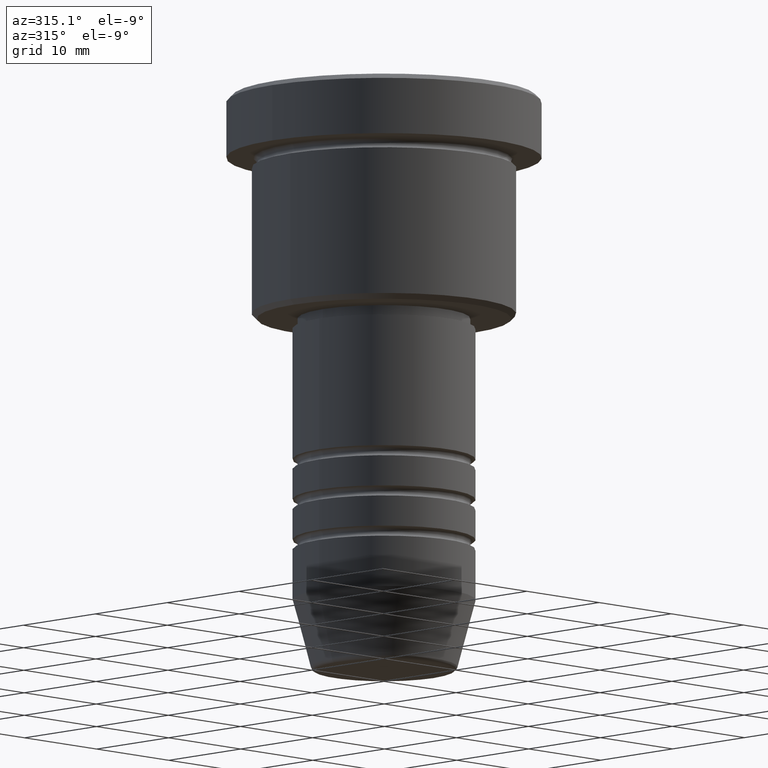
[diagram: clean part render]
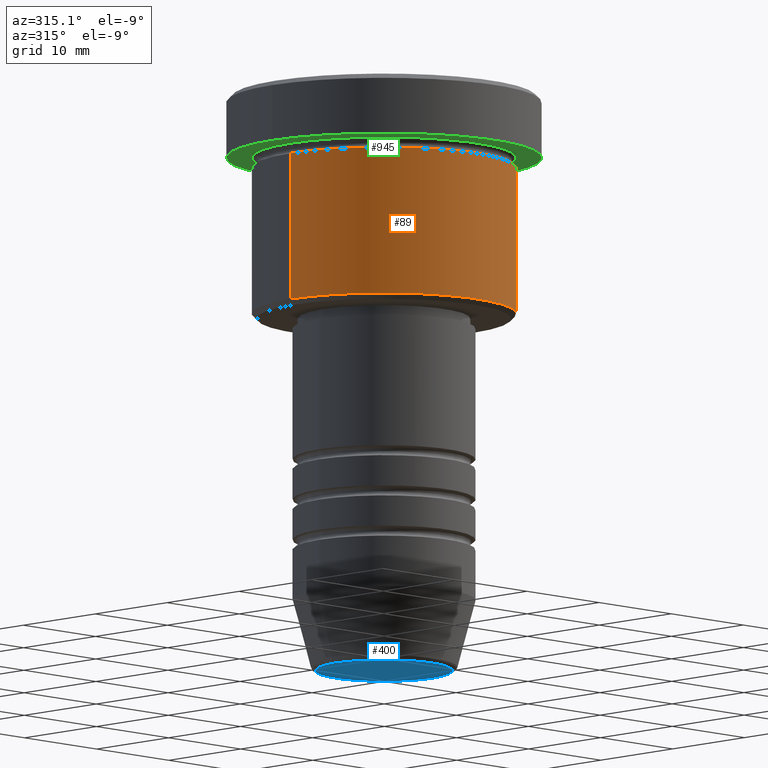
[diagram: same view with three faces highlighted in distinct colors, each labeled with its STEP entity id]
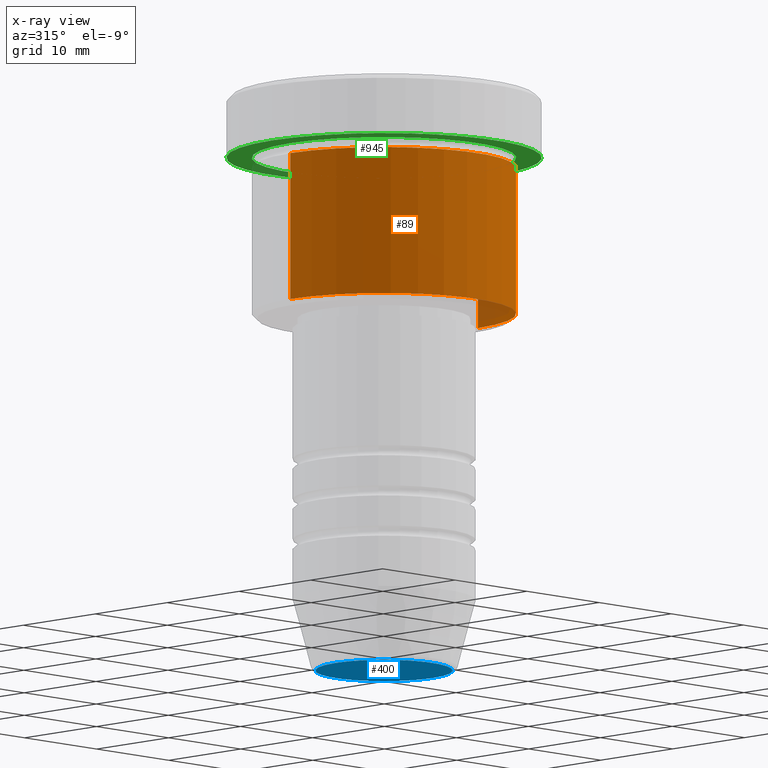
[diagram: x-ray of the same camera — body ghosted, the three highlighted faces saturated]
A machine part, auxiliary view with three faces highlighted in distinct colors.
The next image is the same camera in x-ray (body ghosted, the three faces saturated) — at least one of them is partly hidden behind the body in this view.
Their STEP definitions:

[orange] entity #89 — the highlighted cylindrical surface (partial cylindrical patch) has radius 13 mm, axis along (-0, -0, 1).
#6 = CARTESIAN_POINT ( 'NONE',  ( 13.00000000000000178, 0.000000000000000000, -6.999999999999995559 ) ) ;
#46 = AXIS2_PLACEMENT_3D ( 'NONE', #1096, #97, #452 ) ;
#89 = ADVANCED_FACE ( 'NONE', ( #1128 ), #860, .T. ) ;
#97 = DIRECTION ( 'NONE',  ( -0.000000000000000000, -0.000000000000000000, 1.000000000000000000 ) ) ;
#148 = DIRECTION ( 'NONE',  ( 1.000000000000000000, 0.000000000000000000, 0.000000000000000000 ) ) ;
#237 = DIRECTION ( 'NONE',  ( -0.000000000000000000, -0.000000000000000000, 1.000000000000000000 ) ) ;
#240 = CARTESIAN_POINT ( 'NONE',  ( -13.00000000000000178, 1.592040838891559293E-15, -21.49999999999999289 ) ) ;
#256 = CARTESIAN_POINT ( 'NONE',  ( 13.00000000000000178, 0.000000000000000000, 0.000000000000000000 ) ) ;
#286 = CARTESIAN_POINT ( 'NONE',  ( -13.00000000000000178, 1.592040838891559293E-15, 0.000000000000000000 ) ) ;
#309 = CARTESIAN_POINT ( 'NONE',  ( 0.000000000000000000, 0.000000000000000000, 0.000000000000000000 ) ) ;
#375 = ORIENTED_EDGE ( 'NONE', *, *, #381, .F. ) ;
#381 = EDGE_CURVE ( 'NONE', #600, #956, #664, .T. ) ;
#396 = VERTEX_POINT ( 'NONE', #240 ) ;
#412 = DIRECTION ( 'NONE',  ( -0.000000000000000000, -0.000000000000000000, 1.000000000000000000 ) ) ;
#426 = CARTESIAN_POINT ( 'NONE',  ( 0.000000000000000000, 0.000000000000000000, -6.999999999999995559 ) ) ;
#438 = AXIS2_PLACEMENT_3D ( 'NONE', #426, #412, #787 ) ;
#452 = DIRECTION ( 'NONE',  ( -1.000000000000000000, 0.000000000000000000, 0.000000000000000000 ) ) ;
#538 = VECTOR ( 'NONE', #968, 1000.000000000000000 ) ;
#589 = EDGE_CURVE ( 'NONE', #396, #808, #795, .T. ) ;
#600 = VERTEX_POINT ( 'NONE', #928 ) ;
#614 = ORIENTED_EDGE ( 'NONE', *, *, #1025, .F. ) ;
#654 = DIRECTION ( 'NONE',  ( -0.000000000000000000, -0.000000000000000000, 1.000000000000000000 ) ) ;
#664 = CIRCLE ( 'NONE', #438, 13.00000000000000178 ) ;
#745 = VECTOR ( 'NONE', #654, 1000.000000000000000 ) ;
#787 = DIRECTION ( 'NONE',  ( 1.000000000000000000, 0.000000000000000000, 0.000000000000000000 ) ) ;
#790 = EDGE_CURVE ( 'NONE', #808, #956, #1056, .T. ) ;
#795 = CIRCLE ( 'NONE', #46, 13.00000000000000178 ) ;
#801 = CARTESIAN_POINT ( 'NONE',  ( 13.00000000000000178, 0.000000000000000000, -21.49999999999999289 ) ) ;
#808 = VERTEX_POINT ( 'NONE', #801 ) ;
#811 = AXIS2_PLACEMENT_3D ( 'NONE', #309, #237, #148 ) ;
#851 = LINE ( 'NONE', #286, #745 ) ;
#860 = CYLINDRICAL_SURFACE ( 'NONE', #811, 13.00000000000000178 ) ;
#915 = EDGE_LOOP ( 'NONE', ( #614, #1028, #967, #375 ) ) ;
#928 = CARTESIAN_POINT ( 'NONE',  ( -13.00000000000000178, 1.592040838891559293E-15, -6.999999999999995559 ) ) ;
#956 = VERTEX_POINT ( 'NONE', #6 ) ;
#967 = ORIENTED_EDGE ( 'NONE', *, *, #790, .T. ) ;
#968 = DIRECTION ( 'NONE',  ( -0.000000000000000000, -0.000000000000000000, 1.000000000000000000 ) ) ;
#1025 = EDGE_CURVE ( 'NONE', #396, #600, #851, .T. ) ;
#1028 = ORIENTED_EDGE ( 'NONE', *, *, #589, .T. ) ;
#1056 = LINE ( 'NONE', #256, #538 ) ;
#1096 = CARTESIAN_POINT ( 'NONE',  ( 0.000000000000000000, 0.000000000000000000, -21.49999999999999289 ) ) ;
#1128 = FACE_OUTER_BOUND ( 'NONE', #915, .T. ) ;

[blue] entity #400 — the highlighted planar face has unit normal (0, -0, 1).
#70 = FACE_OUTER_BOUND ( 'NONE', #490, .T. ) ;
#74 = ORIENTED_EDGE ( 'NONE', *, *, #106, .T. ) ;
#81 = CIRCLE ( 'NONE', #273, 6.740692158992656502 ) ;
#106 = EDGE_CURVE ( 'NONE', #131, #550, #251, .T. ) ;
#118 = CARTESIAN_POINT ( 'NONE',  ( 0.000000000000000000, 0.000000000000000000, -57.00000000000000000 ) ) ;
#131 = VERTEX_POINT ( 'NONE', #669 ) ;
#169 = DIRECTION ( 'NONE',  ( 0.000000000000000000, -0.000000000000000000, 1.000000000000000000 ) ) ;
#196 = EDGE_CURVE ( 'NONE', #550, #131, #81, .T. ) ;
#251 = CIRCLE ( 'NONE', #870, 6.740692158992656502 ) ;
#273 = AXIS2_PLACEMENT_3D ( 'NONE', #118, #404, #467 ) ;
#360 = ORIENTED_EDGE ( 'NONE', *, *, #196, .T. ) ;
#400 = ADVANCED_FACE ( 'NONE', ( #70 ), #803, .F. ) ;
#404 = DIRECTION ( 'NONE',  ( 0.000000000000000000, 0.000000000000000000, -1.000000000000000000 ) ) ;
#459 = DIRECTION ( 'NONE',  ( 0.000000000000000000, 0.000000000000000000, -1.000000000000000000 ) ) ;
#467 = DIRECTION ( 'NONE',  ( 1.000000000000000000, 0.000000000000000000, 0.000000000000000000 ) ) ;
#473 = CARTESIAN_POINT ( 'NONE',  ( 0.000000000000000000, 0.000000000000000000, -57.00000000000000000 ) ) ;
#490 = EDGE_LOOP ( 'NONE', ( #360, #74 ) ) ;
#508 = DIRECTION ( 'NONE',  ( 1.000000000000000000, 0.000000000000000000, 0.000000000000000000 ) ) ;
#526 = CARTESIAN_POINT ( 'NONE',  ( 0.000000000000000000, 0.000000000000000000, -57.00000000000000000 ) ) ;
#550 = VERTEX_POINT ( 'NONE', #842 ) ;
#669 = CARTESIAN_POINT ( 'NONE',  ( -6.740692158992656502, 8.550696569392685681E-16, -57.00000000000000000 ) ) ;
#700 = AXIS2_PLACEMENT_3D ( 'NONE', #526, #169, #508 ) ;
#803 = PLANE ( 'NONE',  #700 ) ;
#842 = CARTESIAN_POINT ( 'NONE',  ( 6.740692158992656502, 0.000000000000000000, -57.00000000000000000 ) ) ;
#870 = AXIS2_PLACEMENT_3D ( 'NONE', #473, #459, #1019 ) ;
#1019 = DIRECTION ( 'NONE',  ( 1.000000000000000000, 0.000000000000000000, 0.000000000000000000 ) ) ;

[green] entity #945 — the highlighted planar face has unit normal (0, 0, -1).
#2 = FACE_OUTER_BOUND ( 'NONE', #108, .T. ) ;
#27 = PLANE ( 'NONE',  #137 ) ;
#84 = DIRECTION ( 'NONE',  ( -1.000000000000000000, 0.000000000000000000, -0.000000000000000000 ) ) ;
#93 = ORIENTED_EDGE ( 'NONE', *, *, #1034, .F. ) ;
#108 = EDGE_LOOP ( 'NONE', ( #507, #93 ) ) ;
#137 = AXIS2_PLACEMENT_3D ( 'NONE', #1008, #268, #84 ) ;
#160 = CIRCLE ( 'NONE', #558, 13.00000000000000000 ) ;
#181 = CARTESIAN_POINT ( 'NONE',  ( 0.000000000000000000, 0.000000000000000000, -5.999999999999995559 ) ) ;
#216 = AXIS2_PLACEMENT_3D ( 'NONE', #181, #911, #540 ) ;
#219 = VERTEX_POINT ( 'NONE', #483 ) ;
#229 = EDGE_LOOP ( 'NONE', ( #1017, #1058 ) ) ;
#255 = AXIS2_PLACEMENT_3D ( 'NONE', #934, #748, #1108 ) ;
#268 = DIRECTION ( 'NONE',  ( 0.000000000000000000, 0.000000000000000000, -1.000000000000000000 ) ) ;
#300 = DIRECTION ( 'NONE',  ( -0.000000000000000000, -0.000000000000000000, 1.000000000000000000 ) ) ;
#366 = CARTESIAN_POINT ( 'NONE',  ( 13.00000000000000000, 1.592040838891559095E-15, -5.999999999999994671 ) ) ;
#482 = CARTESIAN_POINT ( 'NONE',  ( 15.50000000000000000, 0.000000000000000000, -5.999999999999995559 ) ) ;
#483 = CARTESIAN_POINT ( 'NONE',  ( -13.00000000000000000, 0.000000000000000000, -5.999999999999994671 ) ) ;
#506 = VERTEX_POINT ( 'NONE', #1016 ) ;
#507 = ORIENTED_EDGE ( 'NONE', *, *, #1011, .F. ) ;
#521 = CIRCLE ( 'NONE', #255, 15.50000000000000000 ) ;
#540 = DIRECTION ( 'NONE',  ( 1.000000000000000000, 0.000000000000000000, 0.000000000000000000 ) ) ;
#546 = CARTESIAN_POINT ( 'NONE',  ( 0.000000000000000000, 0.000000000000000000, -5.999999999999995559 ) ) ;
#558 = AXIS2_PLACEMENT_3D ( 'NONE', #546, #300, #995 ) ;
#565 = CARTESIAN_POINT ( 'NONE',  ( 0.000000000000000000, 0.000000000000000000, -5.999999999999995559 ) ) ;
#676 = EDGE_CURVE ( 'NONE', #992, #219, #1161, .T. ) ;
#704 = VERTEX_POINT ( 'NONE', #482 ) ;
#738 = FACE_BOUND ( 'NONE', #229, .T. ) ;
#748 = DIRECTION ( 'NONE',  ( -0.000000000000000000, -0.000000000000000000, 1.000000000000000000 ) ) ;
#911 = DIRECTION ( 'NONE',  ( -0.000000000000000000, -0.000000000000000000, 1.000000000000000000 ) ) ;
#913 = EDGE_CURVE ( 'NONE', #219, #992, #160, .T. ) ;
#932 = DIRECTION ( 'NONE',  ( -0.000000000000000000, -0.000000000000000000, 1.000000000000000000 ) ) ;
#934 = CARTESIAN_POINT ( 'NONE',  ( 0.000000000000000000, 0.000000000000000000, -5.999999999999995559 ) ) ;
#935 = DIRECTION ( 'NONE',  ( -1.000000000000000000, 0.000000000000000000, 0.000000000000000000 ) ) ;
#945 = ADVANCED_FACE ( 'NONE', ( #738, #2 ), #27, .T. ) ;
#992 = VERTEX_POINT ( 'NONE', #366 ) ;
#995 = DIRECTION ( 'NONE',  ( -1.000000000000000000, 0.000000000000000000, 0.000000000000000000 ) ) ;
#1008 = CARTESIAN_POINT ( 'NONE',  ( 0.000000000000000000, 15.50000000000000000, -5.999999999999995559 ) ) ;
#1011 = EDGE_CURVE ( 'NONE', #704, #506, #521, .T. ) ;
#1016 = CARTESIAN_POINT ( 'NONE',  ( -15.50000000000000000, 1.898202538678397557E-15, -5.999999999999995559 ) ) ;
#1017 = ORIENTED_EDGE ( 'NONE', *, *, #913, .T. ) ;
#1034 = EDGE_CURVE ( 'NONE', #506, #704, #1142, .T. ) ;
#1058 = ORIENTED_EDGE ( 'NONE', *, *, #676, .T. ) ;
#1108 = DIRECTION ( 'NONE',  ( 1.000000000000000000, 0.000000000000000000, 0.000000000000000000 ) ) ;
#1118 = AXIS2_PLACEMENT_3D ( 'NONE', #565, #932, #935 ) ;
#1142 = CIRCLE ( 'NONE', #216, 15.50000000000000000 ) ;
#1161 = CIRCLE ( 'NONE', #1118, 13.00000000000000000 ) ;